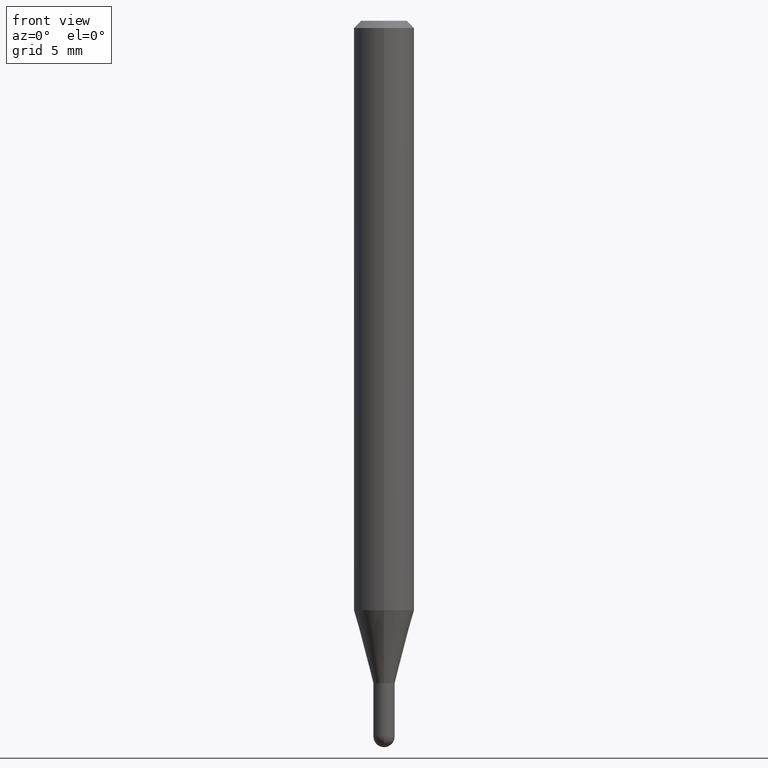
[diagram: clean part render]
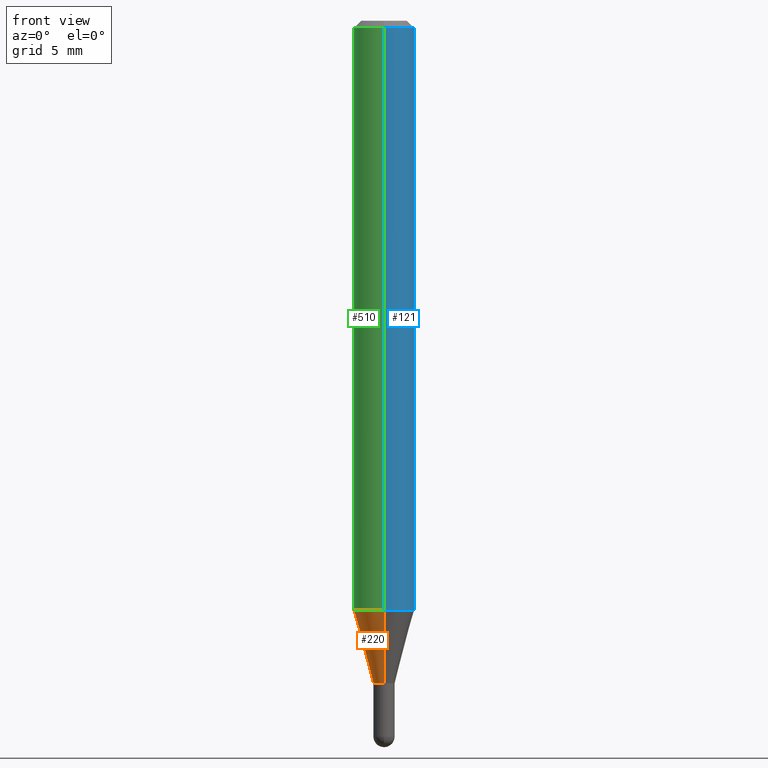
[diagram: same view with three faces highlighted in distinct colors, each labeled with its STEP entity id]
A machine part, front view with three faces highlighted in distinct colors.
Their STEP definitions:

[orange] entity #220 — the highlighted conical surface has half-angle 15 deg.
#4 = LINE ( 'NONE', #162, #342 ) ;
#6 = EDGE_CURVE ( 'NONE', #166, #127, #51, .T. ) ;
#9 = CONICAL_SURFACE ( 'NONE', #281, 0.02199999999999964831, 0.2617993877991576235 ) ;
#16 = CARTESIAN_POINT ( 'NONE',  ( 3.002043058586727691E-16, 0.02199999999999487088, -1.368000000000000105 ) ) ;
#19 = EDGE_CURVE ( 'NONE', #183, #193, #4, .T. ) ;
#41 = CIRCLE ( 'NONE', #289, 0.06250000000000000000 ) ;
#42 = CARTESIAN_POINT ( 'NONE',  ( 2.975772642691505504E-29, -4.248617028571555662E-15, -1.216851942293464051 ) ) ;
#51 = LINE ( 'NONE', #292, #83 ) ;
#72 = DIRECTION ( 'NONE',  ( -6.982962677686265922E-15, -1.000000000000000000, 4.370956789862821150E-15 ) ) ;
#83 = VECTOR ( 'NONE', #363, 39.37007874015748854 ) ;
#89 = CARTESIAN_POINT ( 'NONE',  ( 4.440892098500921985E-16, 0.06249999999999573258, -1.216851942293464273 ) ) ;
#91 = DIRECTION ( 'NONE',  ( -6.982962677686265133E-15, -1.000000000000000000, 0.000000000000000000 ) ) ;
#119 = ORIENTED_EDGE ( 'NONE', *, *, #6, .F. ) ;
#127 = VERTEX_POINT ( 'NONE', #89 ) ;
#135 = DIRECTION ( 'NONE',  ( -2.445468129083076640E-29, 3.491482308491833698E-15, 1.000000000000000000 ) ) ;
#160 = DIRECTION ( 'NONE',  ( -1.807323732225379838E-15, -0.2588190451025252914, 0.9659258262890670910 ) ) ;
#162 = CARTESIAN_POINT ( 'NONE',  ( -1.536251789090619183E-16, -0.02200000000000442227, -1.368000000000000105 ) ) ;
#166 = VERTEX_POINT ( 'NONE', #16 ) ;
#169 = ORIENTED_EDGE ( 'NONE', *, *, #368, .F. ) ;
#174 = CARTESIAN_POINT ( 'NONE',  ( 3.345400400585649103E-29, -4.776347798016828139E-15, -1.368000000000000105 ) ) ;
#183 = VERTEX_POINT ( 'NONE', #453 ) ;
#193 = VERTEX_POINT ( 'NONE', #302 ) ;
#200 = ORIENTED_EDGE ( 'NONE', *, *, #214, .T. ) ;
#214 = EDGE_CURVE ( 'NONE', #166, #183, #255, .T. ) ;
#216 = FACE_OUTER_BOUND ( 'NONE', #384, .T. ) ;
#220 = ADVANCED_FACE ( 'NONE', ( #216 ), #9, .T. ) ;
#226 = DIRECTION ( 'NONE',  ( -2.445468129083076640E-29, 3.491482308491833698E-15, 1.000000000000000000 ) ) ;
#253 = CARTESIAN_POINT ( 'NONE',  ( 3.345400400585649103E-29, -4.776347798016828139E-15, -1.368000000000000105 ) ) ;
#255 = CIRCLE ( 'NONE', #486, 0.02199999999999964831 ) ;
#281 = AXIS2_PLACEMENT_3D ( 'NONE', #253, #226, #344 ) ;
#289 = AXIS2_PLACEMENT_3D ( 'NONE', #42, #443, #72 ) ;
#292 = CARTESIAN_POINT ( 'NONE',  ( 1.563194018672529700E-16, 0.02199999999999487088, -1.368000000000000105 ) ) ;
#302 = CARTESIAN_POINT ( 'NONE',  ( -4.364351673553619392E-16, -0.06250000000000427436, -1.216851942293464051 ) ) ;
#342 = VECTOR ( 'NONE', #160, 39.37007874015748143 ) ;
#344 = DIRECTION ( 'NONE',  ( -6.982962677686265133E-15, -1.000000000000000000, 0.000000000000000000 ) ) ;
#363 = DIRECTION ( 'NONE',  ( 1.839019923739650408E-15, 0.2588190451025320082, 0.9659258262890650926 ) ) ;
#368 = EDGE_CURVE ( 'NONE', #127, #193, #41, .T. ) ;
#384 = EDGE_LOOP ( 'NONE', ( #119, #200, #461, #169 ) ) ;
#443 = DIRECTION ( 'NONE',  ( -2.445468129083076640E-29, 3.491482308491833698E-15, 1.000000000000000000 ) ) ;
#453 = CARTESIAN_POINT ( 'NONE',  ( -1.536251789090619183E-16, -0.02200000000000442227, -1.368000000000000105 ) ) ;
#461 = ORIENTED_EDGE ( 'NONE', *, *, #19, .T. ) ;
#486 = AXIS2_PLACEMENT_3D ( 'NONE', #174, #135, #91 ) ;

[blue] entity #121 — the highlighted cylindrical surface (edge-blend (fillet) strip) has radius 1.5875 mm, axis along (-0, 0, 1).
#7 = DIRECTION ( 'NONE',  ( -2.445468129083076640E-29, 3.491482308491833698E-15, 1.000000000000000000 ) ) ;
#14 = EDGE_CURVE ( 'NONE', #238, #482, #279, .T. ) ;
#24 = CIRCLE ( 'NONE', #320, 0.06250000000000000000 ) ;
#29 = CARTESIAN_POINT ( 'NONE',  ( 0.000000000000000000, 0.000000000000000000, 0.000000000000000000 ) ) ;
#55 = DIRECTION ( 'NONE',  ( -6.982962677686265922E-15, -1.000000000000000000, 3.491482308491833304E-15 ) ) ;
#87 = EDGE_LOOP ( 'NONE', ( #202, #437, #131, #398 ) ) ;
#89 = CARTESIAN_POINT ( 'NONE',  ( 4.440892098500921985E-16, 0.06249999999999573258, -1.216851942293464273 ) ) ;
#121 = ADVANCED_FACE ( 'NONE', ( #348 ), #505, .T. ) ;
#127 = VERTEX_POINT ( 'NONE', #89 ) ;
#128 = DIRECTION ( 'NONE',  ( -2.445468129083076640E-29, 3.491482308491833304E-15, 1.000000000000000000 ) ) ;
#131 = ORIENTED_EDGE ( 'NONE', *, *, #14, .F. ) ;
#164 = AXIS2_PLACEMENT_3D ( 'NONE', #29, #185, #55 ) ;
#181 = CARTESIAN_POINT ( 'NONE',  ( -4.364351673553912750E-16, -0.06250000000000005551, -0.01499999999999984852 ) ) ;
#185 = DIRECTION ( 'NONE',  ( -2.445468129083076640E-29, 3.491482308491833698E-15, 1.000000000000000000 ) ) ;
#186 = AXIS2_PLACEMENT_3D ( 'NONE', #396, #7, #370 ) ;
#188 = VECTOR ( 'NONE', #128, 39.37007874015748143 ) ;
#193 = VERTEX_POINT ( 'NONE', #302 ) ;
#202 = ORIENTED_EDGE ( 'NONE', *, *, #251, .T. ) ;
#206 = CARTESIAN_POINT ( 'NONE',  ( 4.440892098500924943E-16, 0.06249999999999993755, -0.01500000000000028394 ) ) ;
#238 = VERTEX_POINT ( 'NONE', #181 ) ;
#241 = DIRECTION ( 'NONE',  ( -2.445468129083076640E-29, 3.491482308491833304E-15, 1.000000000000000000 ) ) ;
#251 = EDGE_CURVE ( 'NONE', #193, #127, #24, .T. ) ;
#279 = CIRCLE ( 'NONE', #186, 0.06250000000000000000 ) ;
#297 = EDGE_CURVE ( 'NONE', #127, #482, #391, .T. ) ;
#302 = CARTESIAN_POINT ( 'NONE',  ( -4.364351673553619392E-16, -0.06250000000000427436, -1.216851942293464051 ) ) ;
#320 = AXIS2_PLACEMENT_3D ( 'NONE', #333, #460, #456 ) ;
#333 = CARTESIAN_POINT ( 'NONE',  ( 2.975772642691505504E-29, -4.248617028571555662E-15, -1.216851942293464051 ) ) ;
#348 = FACE_OUTER_BOUND ( 'NONE', #87, .T. ) ;
#360 = CARTESIAN_POINT ( 'NONE',  ( 4.440892098500625669E-16, 0.06250000000000000000, -2.182176442807395815E-16 ) ) ;
#370 = DIRECTION ( 'NONE',  ( -6.982962677686265922E-15, -1.000000000000000000, 3.483106191921935554E-15 ) ) ;
#391 = LINE ( 'NONE', #360, #468 ) ;
#396 = CARTESIAN_POINT ( 'NONE',  ( 3.668202193624631670E-31, -5.237223462737773572E-17, -0.01500000000000006710 ) ) ;
#398 = ORIENTED_EDGE ( 'NONE', *, *, #496, .F. ) ;
#437 = ORIENTED_EDGE ( 'NONE', *, *, #297, .T. ) ;
#456 = DIRECTION ( 'NONE',  ( -6.982962677686265922E-15, -1.000000000000000000, 4.370956789862821150E-15 ) ) ;
#460 = DIRECTION ( 'NONE',  ( -2.445468129083076640E-29, 3.491482308491833698E-15, 1.000000000000000000 ) ) ;
#468 = VECTOR ( 'NONE', #241, 39.37007874015748143 ) ;
#481 = LINE ( 'NONE', #488, #188 ) ;
#482 = VERTEX_POINT ( 'NONE', #206 ) ;
#488 = CARTESIAN_POINT ( 'NONE',  ( -4.364351673553916201E-16, -0.06250000000000000000, 2.182176442807395815E-16 ) ) ;
#496 = EDGE_CURVE ( 'NONE', #193, #238, #481, .T. ) ;
#505 = CYLINDRICAL_SURFACE ( 'NONE', #164, 0.06250000000000000000 ) ;

[green] entity #510 — the highlighted cylindrical surface (edge-blend (fillet) strip) has radius 1.5875 mm, axis along (-0, 0, 1).
#37 = ORIENTED_EDGE ( 'NONE', *, *, #496, .T. ) ;
#41 = CIRCLE ( 'NONE', #289, 0.06250000000000000000 ) ;
#42 = CARTESIAN_POINT ( 'NONE',  ( 2.975772642691505504E-29, -4.248617028571555662E-15, -1.216851942293464051 ) ) ;
#45 = ORIENTED_EDGE ( 'NONE', *, *, #297, .F. ) ;
#70 = CARTESIAN_POINT ( 'NONE',  ( 3.668202193624631670E-31, -5.237223462737773572E-17, -0.01500000000000006710 ) ) ;
#72 = DIRECTION ( 'NONE',  ( -6.982962677686265922E-15, -1.000000000000000000, 4.370956789862821150E-15 ) ) ;
#73 = ORIENTED_EDGE ( 'NONE', *, *, #368, .T. ) ;
#84 = CIRCLE ( 'NONE', #247, 0.06250000000000000000 ) ;
#89 = CARTESIAN_POINT ( 'NONE',  ( 4.440892098500921985E-16, 0.06249999999999573258, -1.216851942293464273 ) ) ;
#127 = VERTEX_POINT ( 'NONE', #89 ) ;
#128 = DIRECTION ( 'NONE',  ( -2.445468129083076640E-29, 3.491482308491833304E-15, 1.000000000000000000 ) ) ;
#133 = AXIS2_PLACEMENT_3D ( 'NONE', #212, #373, #455 ) ;
#181 = CARTESIAN_POINT ( 'NONE',  ( -4.364351673553912750E-16, -0.06250000000000005551, -0.01499999999999984852 ) ) ;
#188 = VECTOR ( 'NONE', #128, 39.37007874015748143 ) ;
#193 = VERTEX_POINT ( 'NONE', #302 ) ;
#206 = CARTESIAN_POINT ( 'NONE',  ( 4.440892098500924943E-16, 0.06249999999999993755, -0.01500000000000028394 ) ) ;
#212 = CARTESIAN_POINT ( 'NONE',  ( 0.000000000000000000, 0.000000000000000000, 0.000000000000000000 ) ) ;
#238 = VERTEX_POINT ( 'NONE', #181 ) ;
#241 = DIRECTION ( 'NONE',  ( -2.445468129083076640E-29, 3.491482308491833304E-15, 1.000000000000000000 ) ) ;
#247 = AXIS2_PLACEMENT_3D ( 'NONE', #70, #357, #362 ) ;
#272 = EDGE_LOOP ( 'NONE', ( #45, #73, #37, #349 ) ) ;
#289 = AXIS2_PLACEMENT_3D ( 'NONE', #42, #443, #72 ) ;
#295 = FACE_OUTER_BOUND ( 'NONE', #272, .T. ) ;
#297 = EDGE_CURVE ( 'NONE', #127, #482, #391, .T. ) ;
#302 = CARTESIAN_POINT ( 'NONE',  ( -4.364351673553619392E-16, -0.06250000000000427436, -1.216851942293464051 ) ) ;
#337 = EDGE_CURVE ( 'NONE', #482, #238, #84, .T. ) ;
#349 = ORIENTED_EDGE ( 'NONE', *, *, #337, .F. ) ;
#357 = DIRECTION ( 'NONE',  ( -2.445468129083076640E-29, 3.491482308491833698E-15, 1.000000000000000000 ) ) ;
#360 = CARTESIAN_POINT ( 'NONE',  ( 4.440892098500625669E-16, 0.06250000000000000000, -2.182176442807395815E-16 ) ) ;
#362 = DIRECTION ( 'NONE',  ( -6.982962677686265922E-15, -1.000000000000000000, 3.483106191921935554E-15 ) ) ;
#368 = EDGE_CURVE ( 'NONE', #127, #193, #41, .T. ) ;
#373 = DIRECTION ( 'NONE',  ( -2.445468129083076640E-29, 3.491482308491833698E-15, 1.000000000000000000 ) ) ;
#391 = LINE ( 'NONE', #360, #468 ) ;
#443 = DIRECTION ( 'NONE',  ( -2.445468129083076640E-29, 3.491482308491833698E-15, 1.000000000000000000 ) ) ;
#455 = DIRECTION ( 'NONE',  ( -6.982962677686265922E-15, -1.000000000000000000, 3.491482308491833304E-15 ) ) ;
#468 = VECTOR ( 'NONE', #241, 39.37007874015748143 ) ;
#481 = LINE ( 'NONE', #488, #188 ) ;
#482 = VERTEX_POINT ( 'NONE', #206 ) ;
#488 = CARTESIAN_POINT ( 'NONE',  ( -4.364351673553916201E-16, -0.06250000000000000000, 2.182176442807395815E-16 ) ) ;
#491 = CYLINDRICAL_SURFACE ( 'NONE', #133, 0.06250000000000000000 ) ;
#496 = EDGE_CURVE ( 'NONE', #193, #238, #481, .T. ) ;
#510 = ADVANCED_FACE ( 'NONE', ( #295 ), #491, .T. ) ;